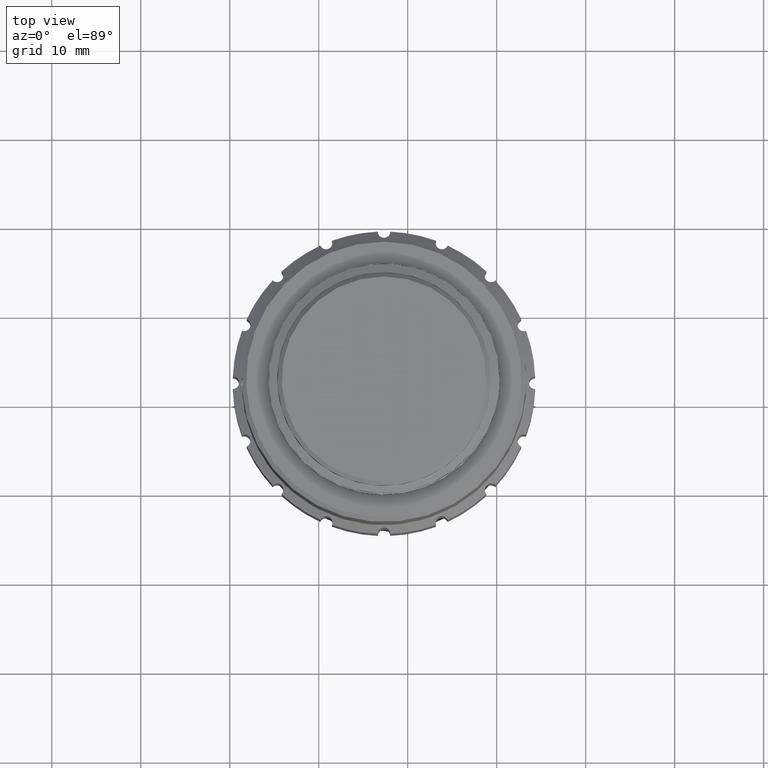
[diagram: clean part render]
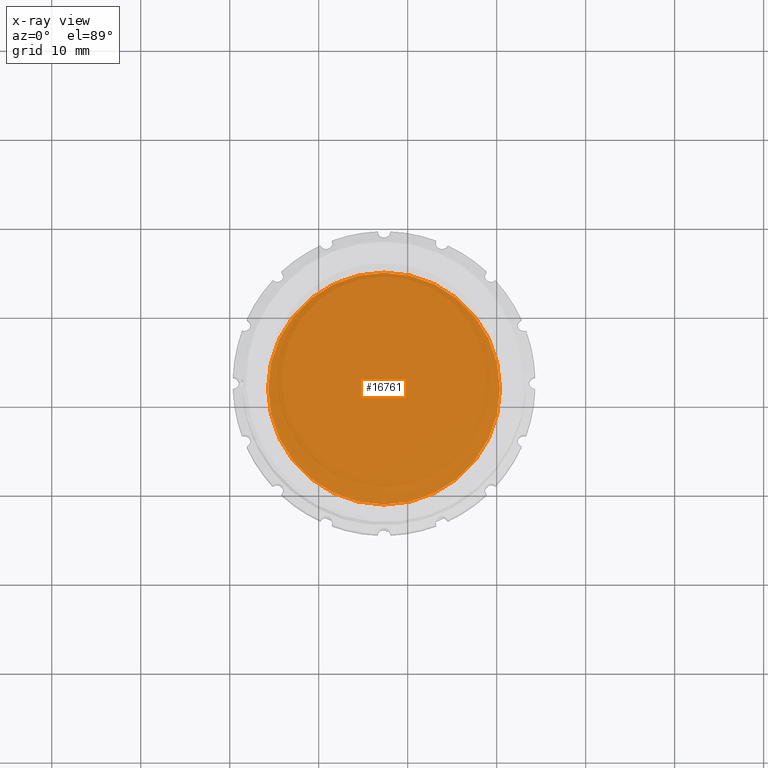
[diagram: x-ray — body ghosted, one internal face saturated and labeled with its STEP entity id]
A machine part, top view, then the same camera in x-ray: the body is ghosted and one INTERNAL B-rep face — a face not visible from any outside direction — is saturated and labeled: STEP entity #16761.
In plain terms, the highlighted planar face has unit normal (0, 0, -1).
Its self-contained STEP definition (entity closure, byte-faithful):
#5219 = DIRECTION ( 'NONE',  ( 0.000000000000000000, 1.313240075463129887E-16, -1.000000000000000000 ) ) ;
#6680 = CARTESIAN_POINT ( 'NONE',  ( -122.6630341068842824, 35.03833184500979314, -31.75669217563123325 ) ) ;
#6977 = DIRECTION ( 'NONE',  ( -0.000000000000000000, -1.313240075463129887E-16, 1.000000000000000000 ) ) ;
#11175 = CIRCLE ( 'NONE', #13574, 13.02302901257115764 ) ;
#11211 = AXIS2_PLACEMENT_3D ( 'NONE', #18035, #5219, #16186 ) ;
#11364 = CARTESIAN_POINT ( 'NONE',  ( -122.6630341068842824, 22.01530283243863195, -31.75669217563123325 ) ) ;
#11382 = ORIENTED_EDGE ( 'NONE', *, *, #13593, .T. ) ;
#11556 = DIRECTION ( 'NONE',  ( 0.000000000000000000, 1.000000000000000000, 0.000000000000000000 ) ) ;
#12945 = EDGE_LOOP ( 'NONE', ( #11382 ) ) ;
#13574 = AXIS2_PLACEMENT_3D ( 'NONE', #11364, #6977, #11556 ) ;
#13593 = EDGE_CURVE ( 'NONE', #14163, #14163, #11175, .T. ) ;
#13741 = PLANE ( 'NONE',  #11211 ) ;
#14163 = VERTEX_POINT ( 'NONE', #6680 ) ;
#15147 = FACE_OUTER_BOUND ( 'NONE', #12945, .T. ) ;
#16186 = DIRECTION ( 'NONE',  ( 0.000000000000000000, 1.000000000000000000, 1.313240075463129887E-16 ) ) ;
#16761 = ADVANCED_FACE ( 'NONE', ( #15147 ), #13741, .F. ) ;
#18035 = CARTESIAN_POINT ( 'NONE',  ( -153.8725490382067846, 78.32088365729966029, -31.75669217563123325 ) ) ;